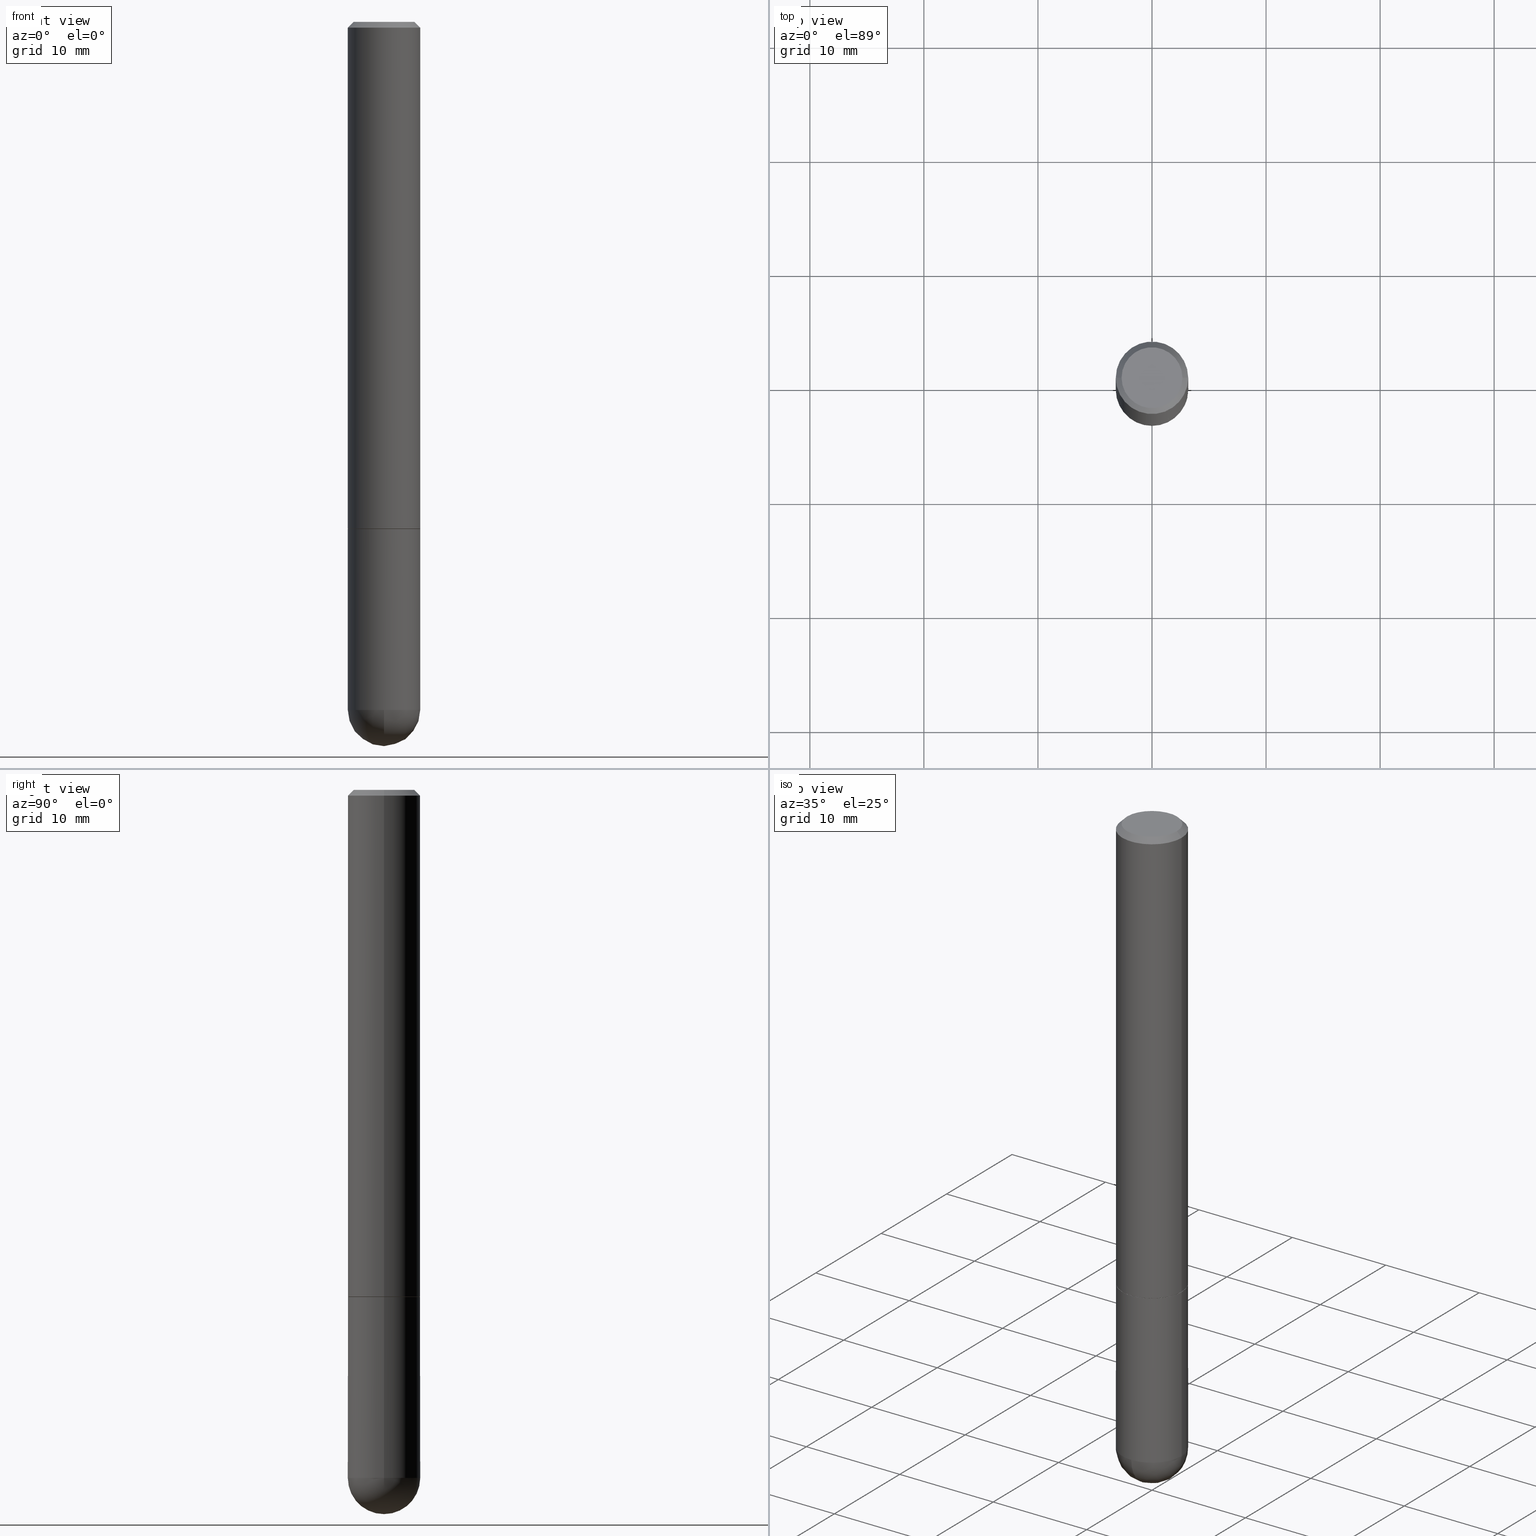
[diagram: canonical four-view strip — front | top / right | iso, engineering-drawing reading convention]
A machine part, canonical four-view strip (front | top / right | iso — engineering-drawing reading convention). The complete STEP part file that produces these views, byte-faithful:
ISO-10303-21;
HEADER;
FILE_DESCRIPTION (( 'STEP AP203' ),
    '1' );
FILE_NAME ('34917.STEP',
    '2024-02-21T18:22:01',
    ( '' ),
    ( '' ),
    'SwSTEP 2.0',
    'SolidWorks 2023',
    '' );
FILE_SCHEMA (( 'CONFIG_CONTROL_DESIGN' ));
ENDSEC;

DATA;
#1 = VERTEX_POINT ( 'NONE', #9 ) ;
#2 = CARTESIAN_POINT ( 'NONE',  ( 0.000000000000000000, 0.000000000000000000, 0.000000000000000000 ) ) ;
#3 = EDGE_CURVE ( 'NONE', #33, #204, #329, .T. ) ;
#4 = LINE ( 'NONE', #391, #344 ) ;
#5 = CONICAL_SURFACE ( 'NONE', #206, 0.1250000000000000278, 0.7853981633974473908 ) ;
#6 = EDGE_LOOP ( 'NONE', ( #60, #183 ) ) ;
#7 = ORIENTED_EDGE ( 'NONE', *, *, #126, .T. ) ;
#8 = ADVANCED_FACE ( 'NONE', ( #128 ), #335, .T. ) ;
#9 = CARTESIAN_POINT ( 'NONE',  ( 0.1250000000000000000, -6.982962677686288010E-15, -1.750000000000000222 ) ) ;
#10 = CONICAL_SURFACE ( 'NONE', #68, 0.1250000000000000278, 0.7853981633974473908 ) ;
#11 = DIRECTION ( 'NONE',  ( 1.000000000000000000, -6.982962677686264344E-15, 0.000000000000000000 ) ) ;
#12 = ORIENTED_EDGE ( 'NONE', *, *, #340, .F. ) ;
#13 = DIRECTION ( 'NONE',  ( -1.000000000000000000, 6.982962677686267499E-15, 0.000000000000000000 ) ) ;
#14 = PRODUCT ( '34917', '34917', '', ( #54 ) ) ;
#15 = DATE_AND_TIME ( #252, #307 ) ;
#16 = EDGE_CURVE ( 'NONE', #398, #249, #200, .T. ) ;
#17 = PERSON_AND_ORGANIZATION_ROLE ( 'creator' ) ;
#18 = DIRECTION ( 'NONE',  ( -2.445468806185136597E-29, 3.491481338843145583E-15, 1.000000000000000000 ) ) ;
#19 = LOCAL_TIME ( 13, 22, 1.000000000000000000, #289 ) ;
#20 = CARTESIAN_POINT ( 'NONE',  ( 4.890937612370292426E-31, -6.982962677686317493E-17, -0.02000000000000007674 ) ) ;
#21 = DIRECTION ( 'NONE',  ( -2.445468806185136597E-29, 3.491481338843145583E-15, 1.000000000000000000 ) ) ;
#22 = ADVANCED_FACE ( 'NONE', ( #217 ), #10, .T. ) ;
#23 = APPROVAL_ROLE ( '' ) ;
#24 = CC_DESIGN_APPROVAL ( #331, ( #411 ) ) ;
#25 = DIRECTION ( 'NONE',  ( 0.7071067811865469066, -7.319954787623254468E-15, -0.7071067811865482389 ) ) ;
#26 = EDGE_CURVE ( 'NONE', #394, #356, #148, .T. ) ;
#27 = PERSON_AND_ORGANIZATION_ROLE ( 'creator' ) ;
#28 = AXIS2_PLACEMENT_3D ( 'NONE', #43, #333, #122 ) ;
#29 = PERSON_AND_ORGANIZATION_ROLE ( 'design_supplier' ) ;
#30 = VECTOR ( 'NONE', #177, 39.37007874015748143 ) ;
#31 = ORIENTED_EDGE ( 'NONE', *, *, #3, .T. ) ;
#32 = EDGE_CURVE ( 'NONE', #211, #234, #395, .T. ) ;
#33 = VERTEX_POINT ( 'NONE', #102 ) ;
#34 = ORIENTED_EDGE ( 'NONE', *, *, #178, .F. ) ;
#35 = ORIENTED_EDGE ( 'NONE', *, *, #32, .F. ) ;
#36 = ADVANCED_FACE ( 'NONE', ( #71 ), #230, .F. ) ;
#37 = CALENDAR_DATE ( 2024, 21, 2 ) ;
#38 = DIRECTION ( 'NONE',  ( 1.000000000000000000, -6.982962677686267499E-15, 0.000000000000000000 ) ) ;
#39 = CIRCLE ( 'NONE', #271, 0.1250000000000000000 ) ;
#40 = CONICAL_SURFACE ( 'NONE', #323, 0.1239999999999999991, 0.7853981633975420928 ) ;
#41 = APPROVAL_ROLE ( '' ) ;
#42 = DIRECTION ( 'NONE',  ( 2.438088387897960049E-29, -3.491481338843145188E-15, -1.000000000000000000 ) ) ;
#43 = CARTESIAN_POINT ( 'NONE',  ( 0.000000000000000000, 0.000000000000000000, 0.000000000000000000 ) ) ;
#44 = AXIS2_PLACEMENT_3D ( 'NONE', #222, #375, #247 ) ;
#45 = VECTOR ( 'NONE', #404, 39.37007874015748143 ) ;
#46 = CARTESIAN_POINT ( 'NONE',  ( 0.000000000000000000, 0.000000000000000000, 0.000000000000000000 ) ) ;
#47 = DIRECTION ( 'NONE',  ( -2.445468806185136597E-29, 3.491481338843145583E-15, 1.000000000000000000 ) ) ;
#48 = DIRECTION ( 'NONE',  ( -2.445468806185136597E-29, 3.491481338843145583E-15, 1.000000000000000000 ) ) ;
#49 = CARTESIAN_POINT ( 'NONE',  ( 8.728703347108260359E-16, 0.1249999999999938799, -1.750000000000000666 ) ) ;
#50 = AXIS2_PLACEMENT_3D ( 'NONE', #46, #346, #53 ) ;
#51 = AXIS2_PLACEMENT_3D ( 'NONE', #52, #47, #308 ) ;
#52 = CARTESIAN_POINT ( 'NONE',  ( 5.807988414689700538E-29, -8.292268179752471696E-15, -2.375000000000000000 ) ) ;
#53 = DIRECTION ( 'NONE',  ( 1.000000000000000000, -6.982962677686266711E-15, 4.876176775795935793E-29 ) ) ;
#54 = MECHANICAL_CONTEXT ( 'NONE', #365, 'mechanical' ) ;
#55 = ORIENTED_EDGE ( 'NONE', *, *, #72, .T. ) ;
#56 = UNCERTAINTY_MEASURE_WITH_UNIT (LENGTH_MEASURE( 1.000000000000000082E-05 ), #213, 'distance_accuracy_value', 'NONE');
#57 = AXIS2_PLACEMENT_3D ( 'NONE', #406, #259, #66 ) ;
#58 = ORIENTED_EDGE ( 'NONE', *, *, #119, .T. ) ;
#59 = EDGE_LOOP ( 'NONE', ( #256, #269, #250, #284 ) ) ;
#60 = ORIENTED_EDGE ( 'NONE', *, *, #364, .T. ) ;
#61 = CARTESIAN_POINT ( 'NONE',  ( 4.890937612370292426E-31, -6.982962677686317493E-17, -0.02000000000000007674 ) ) ;
#62 = DATE_TIME_ROLE ( 'creation_date' ) ;
#63 = ORIENTED_EDGE ( 'NONE', *, *, #340, .T. ) ;
#64 = AXIS2_PLACEMENT_3D ( 'NONE', #357, #240, #82 ) ;
#65 = DIRECTION ( 'NONE',  ( 1.000000000000000000, -6.982962677686265922E-15, 4.876176775795935793E-29 ) ) ;
#66 = DIRECTION ( 'NONE',  ( 1.000000000000000000, -6.982962677686270655E-15, 0.000000000000000000 ) ) ;
#67 = DIRECTION ( 'NONE',  ( -2.445468806185136597E-29, 3.491481338843145583E-15, 1.000000000000000000 ) ) ;
#68 = AXIS2_PLACEMENT_3D ( 'NONE', #20, #371, #304 ) ;
#69 = PRODUCT_DEFINITION_FORMATION_WITH_SPECIFIED_SOURCE ( 'ANY', '', #14, .NOT_KNOWN. ) ;
#70 = PLANE ( 'NONE',  #381 ) ;
#71 = FACE_OUTER_BOUND ( 'NONE', #151, .T. ) ;
#72 = EDGE_CURVE ( 'NONE', #366, #234, #377, .T. ) ;
#73 = SHAPE_DEFINITION_REPRESENTATION ( #355, #83 ) ;
#74 = CIRCLE ( 'NONE', #57, 0.1239999999999999991 ) ;
#75 = DIRECTION ( 'NONE',  ( -2.445468806185136597E-29, 3.491481338843145583E-15, 1.000000000000000000 ) ) ;
#76 = CARTESIAN_POINT ( 'NONE',  ( -0.1239999999999999991, -5.223720896284758045E-15, -1.750000000000000222 ) ) ;
#77 = CARTESIAN_POINT ( 'NONE',  ( 0.1050000000000001765, -8.238720831321587491E-16, -1.835460370743122338E-16 ) ) ;
#78 = CARTESIAN_POINT ( 'NONE',  ( 5.476868636775814291E-29, -8.766450547892521992E-15, -2.375000000000000000 ) ) ;
#79 = ADVANCED_FACE ( 'NONE', ( #295 ), #220, .T. ) ;
#80 = CYLINDRICAL_SURFACE ( 'NONE', #64, 0.1250000000000001388 ) ;
#81 = CIRCLE ( 'NONE', #389, 0.1050000000000001765 ) ;
#82 = DIRECTION ( 'NONE',  ( 1.000000000000000000, -6.982962677686266711E-15, 4.876176775795935793E-29 ) ) ;
#83 = ADVANCED_BREP_SHAPE_REPRESENTATION ( '34917', ( #153, #301, #235 ), #330 ) ;
#84 = ORIENTED_EDGE ( 'NONE', *, *, #349, .T. ) ;
#85 = EDGE_CURVE ( 'NONE', #394, #146, #260, .T. ) ;
#86 = EDGE_LOOP ( 'NONE', ( #361, #288, #179, #34 ) ) ;
#87 = CLOSED_SHELL ( 'NONE', ( #8, #399, #185, #232, #143 ) ) ;
#88 = APPROVAL_PERSON_ORGANIZATION ( #293, #331, #41 ) ;
#89 = ORGANIZATION ( 'UNSPECIFIED', 'UNSPECIFIED', '' ) ;
#90 = EDGE_LOOP ( 'NONE', ( #362, #55, #35, #327 ) ) ;
#91 = ORIENTED_EDGE ( 'NONE', *, *, #215, .T. ) ;
#92 = PERSON_AND_ORGANIZATION ( #130, #89 ) ;
#93 = CC_DESIGN_PERSON_AND_ORGANIZATION_ASSIGNMENT ( #296, #17, ( #411 ) ) ;
#94 = VECTOR ( 'NONE', #278, 39.37007874015748143 ) ;
#95 = APPROVAL_DATE_TIME ( #255, #135 ) ;
#96 = DIRECTION ( 'NONE',  ( -2.445468806185136877E-29, 3.491481338843145188E-15, 1.000000000000000000 ) ) ;
#97 = DIRECTION ( 'NONE',  ( 1.000000000000000000, -6.982962677686265922E-15, 4.883557194083112340E-29 ) ) ;
#98 = DIRECTION ( 'NONE',  ( -2.438088387897960049E-29, 3.491481338843145188E-15, 1.000000000000000000 ) ) ;
#99 = FACE_OUTER_BOUND ( 'NONE', #175, .T. ) ;
#100 = CIRCLE ( 'NONE', #350, 0.1250000000000000000 ) ;
#101 = CC_DESIGN_APPROVAL ( #108, ( #201 ) ) ;
#102 = CARTESIAN_POINT ( 'NONE',  ( -0.1050000000000001765, 7.681258945454895748E-16, -1.835460370743229328E-16 ) ) ;
#103 = DIRECTION ( 'NONE',  ( -2.445468806185136597E-29, 3.491481338843145583E-15, 1.000000000000000000 ) ) ;
#104 = PERSON_AND_ORGANIZATION_ROLE ( 'design_owner' ) ;
#105 = LINE ( 'NONE', #238, #111 ) ;
#106 = ORIENTED_EDGE ( 'NONE', *, *, #246, .F. ) ;
#107 = AXIS2_PLACEMENT_3D ( 'NONE', #196, #21, #378 ) ;
#108 = APPROVAL ( #324, 'UNSPECIFIED' ) ;
#109 = ORIENTED_EDGE ( 'NONE', *, *, #354, .T. ) ;
#110 = FACE_OUTER_BOUND ( 'NONE', #118, .T. ) ;
#111 = VECTOR ( 'NONE', #386, 39.37007874015748143 ) ;
#112 = EDGE_LOOP ( 'NONE', ( #147, #328, #203, #210 ) ) ;
#113 = ADVANCED_FACE ( 'NONE', ( #372 ), #224, .T. ) ;
#114 = ORIENTED_EDGE ( 'NONE', *, *, #85, .F. ) ;
#115 = ORIENTED_EDGE ( 'NONE', *, *, #215, .F. ) ;
#116 = VERTEX_POINT ( 'NONE', #229 ) ;
#117 = DATE_AND_TIME ( #267, #345 ) ;
#118 = EDGE_LOOP ( 'NONE', ( #106, #58, #245, #218 ) ) ;
#119 = EDGE_CURVE ( 'NONE', #116, #356, #297, .T. ) ;
#120 = DIRECTION ( 'NONE',  ( -2.445468806185136597E-29, 3.491481338843145583E-15, 1.000000000000000000 ) ) ;
#121 = APPROVAL_ROLE ( '' ) ;
#122 = DIRECTION ( 'NONE',  ( 1.000000000000000000, -6.982962677686266711E-15, 4.876176775795935793E-29 ) ) ;
#123 = AXIS2_PLACEMENT_3D ( 'NONE', #290, #129, #376 ) ;
#124 = CIRCLE ( 'NONE', #258, 0.1239999999999999991 ) ;
#125 = ORIENTED_EDGE ( 'NONE', *, *, #198, .T. ) ;
#126 = EDGE_CURVE ( 'NONE', #393, #142, #39, .T. ) ;
#127 = CARTESIAN_POINT ( 'NONE',  ( 5.807988414689700538E-29, -8.292268179752471696E-15, -2.375000000000000000 ) ) ;
#128 = FACE_OUTER_BOUND ( 'NONE', #144, .T. ) ;
#129 = DIRECTION ( 'NONE',  ( -1.000000000000000000, 6.982962677686265922E-15, -4.883557194083112901E-29 ) ) ;
#130 = PERSON ( 'UNSPECIFIED', 'UNSPECIFIED', 'UNSPECIFIED', ('UNSPECIFIED'), ('UNSPECIFIED'), ('UNSPECIFIED') ) ;
#131 = DIRECTION ( 'NONE',  ( 1.000000000000000000, -6.982962677686270655E-15, 0.000000000000000000 ) ) ;
#132 = DIMENSIONAL_EXPONENTS ( 1.000000000000000000, 0.000000000000000000, 0.000000000000000000, 0.000000000000000000, 0.000000000000000000, 0.000000000000000000, 0.000000000000000000 ) ;
#133 = DIRECTION ( 'NONE',  ( -1.000000000000000000, 6.982962677686265922E-15, -4.876176775795935793E-29 ) ) ;
#134 = AXIS2_PLACEMENT_3D ( 'NONE', #299, #337, #166 ) ;
#135 = APPROVAL ( #154, 'UNSPECIFIED' ) ;
#136 = ORIENTED_EDGE ( 'NONE', *, *, #26, .T. ) ;
#137 = CARTESIAN_POINT ( 'NONE',  ( -0.1250000000000000000, -6.313001841663863345E-15, -1.750000000000000222 ) ) ;
#138 = AXIS2_PLACEMENT_3D ( 'NONE', #339, #305, #273 ) ;
#139 = APPROVAL_PERSON_ORGANIZATION ( #92, #135, #121 ) ;
#140 = CC_DESIGN_PERSON_AND_ORGANIZATION_ASSIGNMENT ( #266, #226, ( #201 ) ) ;
#141 = DIRECTION ( 'NONE',  ( 1.000000000000000000, -6.982962677686270655E-15, 0.000000000000000000 ) ) ;
#142 = VERTEX_POINT ( 'NONE', #387 ) ;
#143 = ADVANCED_FACE ( 'NONE', ( #348 ), #311, .T. ) ;
#144 = EDGE_LOOP ( 'NONE', ( #155, #281, #243, #12, #7 ) ) ;
#145 = DIRECTION ( 'NONE',  ( -1.000000000000000000, 6.982962677686265922E-15, -4.883557194083112901E-29 ) ) ;
#146 = VERTEX_POINT ( 'NONE', #137 ) ;
#147 = ORIENTED_EDGE ( 'NONE', *, *, #349, .F. ) ;
#148 = CIRCLE ( 'NONE', #257, 0.1250000000000000000 ) ;
#149 = VECTOR ( 'NONE', #25, 39.37007874015748143 ) ;
#150 = CC_DESIGN_PERSON_AND_ORGANIZATION_ASSIGNMENT ( #268, #104, ( #14 ) ) ;
#151 = EDGE_LOOP ( 'NONE', ( #374, #115 ) ) ;
#152 = DIRECTION ( 'NONE',  ( 1.000000000000000000, -6.982962677686266711E-15, 4.881622206245854183E-29 ) ) ;
#153 = MANIFOLD_SOLID_BREP ( 'Body-Move/Copy2[1]', #87 ) ;
#154 = APPROVAL_STATUS ( 'not_yet_approved' ) ;
#155 = ORIENTED_EDGE ( 'NONE', *, *, #209, .T. ) ;
#156 = DIRECTION ( 'NONE',  ( -2.445468806185136597E-29, 3.491481338843145583E-15, 1.000000000000000000 ) ) ;
#157 = CALENDAR_DATE ( 2024, 21, 2 ) ;
#158 = APPLICATION_PROTOCOL_DEFINITION ( 'international standard', 'config_control_design', 1994, #173 ) ;
#159 = DIRECTION ( 'NONE',  ( -2.445468806185136597E-29, 3.491481338843145583E-15, 1.000000000000000000 ) ) ;
#160 = CARTESIAN_POINT ( 'NONE',  ( 0.1239999999999999991, -6.975979715008602784E-15, -1.750000000000000222 ) ) ;
#161 = DATE_AND_TIME ( #157, #286 ) ;
#162 = ORIENTED_EDGE ( 'NONE', *, *, #283, .F. ) ;
#163 = CARTESIAN_POINT ( 'NONE',  ( 4.488561081641444621E-45, -6.408475632635922878E-31, -1.835460370743176819E-16 ) ) ;
#164 = AXIS2_PLACEMENT_3D ( 'NONE', #373, #97, #303 ) ;
#165 = COORDINATED_UNIVERSAL_TIME_OFFSET ( 5, 0, .BEHIND. ) ;
#166 = DIRECTION ( 'NONE',  ( 1.000000000000000000, -6.982962677686266711E-15, 4.876176775795935793E-29 ) ) ;
#167 = EDGE_CURVE ( 'NONE', #211, #398, #169, .T. ) ;
#168 = AXIS2_PLACEMENT_3D ( 'NONE', #265, #159, #407 ) ;
#169 = LINE ( 'NONE', #309, #94 ) ;
#170 = EDGE_CURVE ( 'NONE', #234, #249, #4, .T. ) ;
#171 = DIRECTION ( 'NONE',  ( -1.000000000000000000, 6.982962677686265922E-15, -4.876176775795935793E-29 ) ) ;
#172 = CARTESIAN_POINT ( 'NONE',  ( 4.279570410823989044E-29, -6.110092342975505460E-15, -1.750000000000000222 ) ) ;
#173 = APPLICATION_CONTEXT ( 'configuration controlled 3d designs of mechanical parts and assemblies' ) ;
#174 = EDGE_LOOP ( 'NONE', ( #325, #91, #109, #239 ) ) ;
#175 = EDGE_LOOP ( 'NONE', ( #31, #84 ) ) ;
#176 = ORIENTED_EDGE ( 'NONE', *, *, #178, .T. ) ;
#177 = DIRECTION ( 'NONE',  ( -2.445468806185136877E-29, 3.491481338843145188E-15, 1.000000000000000000 ) ) ;
#178 = EDGE_CURVE ( 'NONE', #356, #393, #100, .T. ) ;
#179 = ORIENTED_EDGE ( 'NONE', *, *, #126, .F. ) ;
#180 = DIRECTION ( 'NONE',  ( 2.445468806185136597E-29, -3.491481338843145583E-15, -1.000000000000000000 ) ) ;
#181 = APPROVAL_DATE_TIME ( #161, #331 ) ;
#182 = AXIS2_PLACEMENT_3D ( 'NONE', #320, #326, #384 ) ;
#183 = ORIENTED_EDGE ( 'NONE', *, *, #277, .T. ) ;
#184 = CARTESIAN_POINT ( 'NONE',  ( 4.279570410823989044E-29, -6.110092342975505460E-15, -1.750000000000000222 ) ) ;
#185 = ADVANCED_FACE ( 'NONE', ( #274 ), #392, .T. ) ;
#186 =( NAMED_UNIT ( * ) SI_UNIT ( $, .STERADIAN. ) SOLID_ANGLE_UNIT ( ) );
#187 = DATE_TIME_ROLE ( 'classification_date' ) ;
#188 = CARTESIAN_POINT ( 'NONE',  ( -0.1250000000000000000, 8.881784197001252323E-16, -6.148668862818632227E-30 ) ) ;
#189 = VERTEX_POINT ( 'NONE', #385 ) ;
#190 = CC_DESIGN_SECURITY_CLASSIFICATION ( #201, ( #69 ) ) ;
#191 = CARTESIAN_POINT ( 'NONE',  ( 4.279570410823989044E-29, -6.110092342975505460E-15, -1.750000000000000222 ) ) ;
#192 = CARTESIAN_POINT ( 'NONE',  ( 7.332110811570591090E-16, 0.1050000000000001765, -4.583785591156897143E-16 ) ) ;
#193 = ORIENTED_EDGE ( 'NONE', *, *, #277, .F. ) ;
#194 = ADVANCED_FACE ( 'NONE', ( #99 ), #70, .F. ) ;
#195 = DIRECTION ( 'NONE',  ( -0.7071067811866138531, 7.493145998870593974E-15, 0.7071067811864811814 ) ) ;
#196 = CARTESIAN_POINT ( 'NONE',  ( 4.279570410823989044E-29, -6.110092342975505460E-15, -1.750000000000000222 ) ) ;
#197 = AXIS2_PLACEMENT_3D ( 'NONE', #334, #264, #342 ) ;
#198 = EDGE_CURVE ( 'NONE', #33, #249, #105, .T. ) ;
#199 = CARTESIAN_POINT ( 'NONE',  ( 5.807988414689700538E-29, -8.292268179752471696E-15, -2.375000000000000000 ) ) ;
#200 = CIRCLE ( 'NONE', #368, 0.1250000000000000278 ) ;
#201 = SECURITY_CLASSIFICATION ( '', '', #275 ) ;
#202 = CC_DESIGN_DATE_AND_TIME_ASSIGNMENT ( #15, #62, ( #411 ) ) ;
#203 = ORIENTED_EDGE ( 'NONE', *, *, #16, .T. ) ;
#204 = VERTEX_POINT ( 'NONE', #77 ) ;
#205 = AXIS2_PLACEMENT_3D ( 'NONE', #184, #98, #65 ) ;
#206 = AXIS2_PLACEMENT_3D ( 'NONE', #61, #180, #13 ) ;
#207 = CC_DESIGN_PERSON_AND_ORGANIZATION_ASSIGNMENT ( #314, #29, ( #69 ) ) ;
#208 = ORIENTED_EDGE ( 'NONE', *, *, #228, .F. ) ;
#209 = EDGE_CURVE ( 'NONE', #142, #394, #248, .T. ) ;
#210 = ORIENTED_EDGE ( 'NONE', *, *, #198, .F. ) ;
#211 = VERTEX_POINT ( 'NONE', #233 ) ;
#212 = CALENDAR_DATE ( 2024, 21, 2 ) ;
#213 =( CONVERSION_BASED_UNIT ( 'INCH', #282 ) LENGTH_UNIT ( ) NAMED_UNIT ( #132 ) );
#214 = VECTOR ( 'NONE', #96, 39.37007874015748143 ) ;
#215 = EDGE_CURVE ( 'NONE', #366, #189, #124, .T. ) ;
#216 = AXIS2_PLACEMENT_3D ( 'NONE', #78, #145, #253 ) ;
#217 = FACE_OUTER_BOUND ( 'NONE', #112, .T. ) ;
#218 = ORIENTED_EDGE ( 'NONE', *, *, #209, .F. ) ;
#219 =( NAMED_UNIT ( * ) PLANE_ANGLE_UNIT ( ) SI_UNIT ( $, .RADIAN. ) );
#220 = CYLINDRICAL_SURFACE ( 'NONE', #28, 0.1250000000000001388 ) ;
#221 = ORIENTED_EDGE ( 'NONE', *, *, #170, .F. ) ;
#222 = CARTESIAN_POINT ( 'NONE',  ( 4.279570410823989044E-29, -6.110092342975505460E-15, -1.750000000000000222 ) ) ;
#223 = EDGE_LOOP ( 'NONE', ( #208, #343, #125, #321 ) ) ;
#224 = CONICAL_SURFACE ( 'NONE', #44, 0.1239999999999999991, 0.7853981633975420928 ) ;
#225 = PRODUCT_RELATED_PRODUCT_CATEGORY ( 'detail', '', ( #14 ) ) ;
#226 = PERSON_AND_ORGANIZATION_ROLE ( 'classification_officer' ) ;
#227 = CARTESIAN_POINT ( 'NONE',  ( 0.1250000000000000000, -8.728703347107833388E-16, 6.095220969744919741E-30 ) ) ;
#228 = EDGE_CURVE ( 'NONE', #204, #398, #382, .T. ) ;
#229 = CARTESIAN_POINT ( 'NONE',  ( 5.787897026856327965E-29, -9.195231672753244292E-15, -2.500000000000000444 ) ) ;
#230 = PLANE ( 'NONE',  #205 ) ;
#231 = FACE_OUTER_BOUND ( 'NONE', #6, .T. ) ;
#232 = ADVANCED_FACE ( 'NONE', ( #231 ), #310, .F. ) ;
#233 = CARTESIAN_POINT ( 'NONE',  ( 0.1250000000000002498, -6.979471196347446580E-15, -1.749000000000000110 ) ) ;
#234 = VERTEX_POINT ( 'NONE', #287 ) ;
#235 = AXIS2_PLACEMENT_3D ( 'NONE', #2, #279, #390 ) ;
#236 = CARTESIAN_POINT ( 'NONE',  ( 5.807988414689700538E-29, -8.292268179752471696E-15, -2.375000000000000000 ) ) ;
#237 = DIRECTION ( 'NONE',  ( -2.445468806185136877E-29, 3.491481338843145188E-15, 1.000000000000000000 ) ) ;
#238 = CARTESIAN_POINT ( 'NONE',  ( -0.1250000000000000278, 8.030407079339204351E-16, -0.02000000000000007674 ) ) ;
#239 = ORIENTED_EDGE ( 'NONE', *, *, #302, .F. ) ;
#240 = DIRECTION ( 'NONE',  ( -2.445468806185136597E-29, 3.491481338843145583E-15, 1.000000000000000000 ) ) ;
#241 = CLOSED_SHELL ( 'NONE', ( #113, #79, #22, #316, #383, #412, #36, #194 ) ) ;
#242 = EDGE_CURVE ( 'NONE', #189, #366, #74, .T. ) ;
#243 = ORIENTED_EDGE ( 'NONE', *, *, #364, .F. ) ;
#244 = FACE_OUTER_BOUND ( 'NONE', #276, .T. ) ;
#245 = ORIENTED_EDGE ( 'NONE', *, *, #26, .F. ) ;
#246 = EDGE_CURVE ( 'NONE', #116, #142, #298, .T. ) ;
#247 = DIRECTION ( 'NONE',  ( 1.000000000000000000, -6.982962677686270655E-15, 0.000000000000000000 ) ) ;
#248 = CIRCLE ( 'NONE', #51, 0.1250000000000000000 ) ;
#249 = VERTEX_POINT ( 'NONE', #300 ) ;
#250 = ORIENTED_EDGE ( 'NONE', *, *, #16, .F. ) ;
#251 = DATE_AND_TIME ( #37, #336 ) ;
#252 = CALENDAR_DATE ( 2024, 21, 2 ) ;
#253 = DIRECTION ( 'NONE',  ( 6.982962677686265922E-15, 1.000000000000000000, -4.370956789862814839E-15 ) ) ;
#254 = DIRECTION ( 'NONE',  ( -2.445468806185136597E-29, 3.491481338843145583E-15, 1.000000000000000000 ) ) ;
#255 = DATE_AND_TIME ( #212, #19 ) ;
#256 = ORIENTED_EDGE ( 'NONE', *, *, #32, .T. ) ;
#257 = AXIS2_PLACEMENT_3D ( 'NONE', #127, #263, #131 ) ;
#258 = AXIS2_PLACEMENT_3D ( 'NONE', #172, #103, #317 ) ;
#259 = DIRECTION ( 'NONE',  ( -2.445468806185136597E-29, 3.491481338843145583E-15, 1.000000000000000000 ) ) ;
#260 = LINE ( 'NONE', #188, #214 ) ;
#261 = CARTESIAN_POINT ( 'NONE',  ( 4.277124942017804562E-29, -6.106600861636661664E-15, -1.749000000000000110 ) ) ;
#262 = CC_DESIGN_PERSON_AND_ORGANIZATION_ASSIGNMENT ( #380, #27, ( #69 ) ) ;
#263 = DIRECTION ( 'NONE',  ( -2.445468806185136597E-29, 3.491481338843145583E-15, 1.000000000000000000 ) ) ;
#264 = DIRECTION ( 'NONE',  ( -2.445468806185136597E-29, 3.491481338843145583E-15, 1.000000000000000000 ) ) ;
#265 = CARTESIAN_POINT ( 'NONE',  ( 4.277124942017804562E-29, -6.106600861636661664E-15, -1.749000000000000110 ) ) ;
#266 = PERSON_AND_ORGANIZATION ( #130, #89 ) ;
#267 = CALENDAR_DATE ( 2024, 21, 2 ) ;
#268 = PERSON_AND_ORGANIZATION ( #130, #89 ) ;
#269 = ORIENTED_EDGE ( 'NONE', *, *, #170, .T. ) ;
#270 = VECTOR ( 'NONE', #195, 39.37007874015748143 ) ;
#271 = AXIS2_PLACEMENT_3D ( 'NONE', #199, #75, #351 ) ;
#272 = CIRCLE ( 'NONE', #107, 0.1250000000000000000 ) ;
#273 = DIRECTION ( 'NONE',  ( -7.105427357601000281E-15, -1.000000000000000000, 0.000000000000000000 ) ) ;
#274 = FACE_OUTER_BOUND ( 'NONE', #86, .T. ) ;
#275 = SECURITY_CLASSIFICATION_LEVEL ( 'unclassified' ) ;
#276 = EDGE_LOOP ( 'NONE', ( #221, #285, #358, #162 ) ) ;
#277 = EDGE_CURVE ( 'NONE', #146, #1, #272, .T. ) ;
#278 = DIRECTION ( 'NONE',  ( -2.445468806185136877E-29, 3.491481338843145188E-15, 1.000000000000000000 ) ) ;
#279 = DIRECTION ( 'NONE',  ( 0.000000000000000000, 0.000000000000000000, 1.000000000000000000 ) ) ;
#280 = APPROVAL_PERSON_ORGANIZATION ( #388, #108, #23 ) ;
#281 = ORIENTED_EDGE ( 'NONE', *, *, #85, .T. ) ;
#282 = LENGTH_MEASURE_WITH_UNIT ( LENGTH_MEASURE( 0.02539999999999999897 ), #294 );
#283 = EDGE_CURVE ( 'NONE', #249, #398, #403, .T. ) ;
#284 = ORIENTED_EDGE ( 'NONE', *, *, #167, .F. ) ;
#285 = ORIENTED_EDGE ( 'NONE', *, *, #302, .T. ) ;
#286 = LOCAL_TIME ( 13, 22, 1.000000000000000000, #165 ) ;
#287 = CARTESIAN_POINT ( 'NONE',  ( -0.1250000000000002498, -2.200036824506632516E-15, -1.749000000000000110 ) ) ;
#288 = ORIENTED_EDGE ( 'NONE', *, *, #246, .T. ) ;
#289 = COORDINATED_UNIVERSAL_TIME_OFFSET ( 5, 0, .BEHIND. ) ;
#290 = CARTESIAN_POINT ( 'NONE',  ( 5.476868636775814291E-29, -8.766450547892521992E-15, -2.375000000000000000 ) ) ;
#291 = COORDINATED_UNIVERSAL_TIME_OFFSET ( 5, 0, .BEHIND. ) ;
#292 = COORDINATED_UNIVERSAL_TIME_OFFSET ( 5, 0, .BEHIND. ) ;
#293 = PERSON_AND_ORGANIZATION ( #130, #89 ) ;
#294 =( LENGTH_UNIT ( ) NAMED_UNIT ( * ) SI_UNIT ( $, .METRE. ) );
#295 = FACE_OUTER_BOUND ( 'NONE', #59, .T. ) ;
#296 = PERSON_AND_ORGANIZATION ( #130, #89 ) ;
#297 = CIRCLE ( 'NONE', #138, 0.1250000000000001943 ) ;
#298 = CIRCLE ( 'NONE', #164, 0.1250000000000001943 ) ;
#299 = CARTESIAN_POINT ( 'NONE',  ( 0.000000000000000000, 0.000000000000000000, 0.000000000000000000 ) ) ;
#300 = CARTESIAN_POINT ( 'NONE',  ( -0.1250000000000000278, 8.030407079339204351E-16, -0.02000000000000007674 ) ) ;
#301 = MANIFOLD_SOLID_BREP ( 'Body-Move/Copy2[2]', #241 ) ;
#302 = EDGE_CURVE ( 'NONE', #234, #211, #359, .T. ) ;
#303 = DIRECTION ( 'NONE',  ( 6.982962677686265133E-15, 1.000000000000000000, 0.000000000000000000 ) ) ;
#304 = DIRECTION ( 'NONE',  ( -1.000000000000000000, 6.982962677686267499E-15, 0.000000000000000000 ) ) ;
#305 = DIRECTION ( 'NONE',  ( -1.000000000000000000, 7.105427357601001070E-15, -4.926315508542082329E-29 ) ) ;
#306 = AXIS2_PLACEMENT_3D ( 'NONE', #163, #120, #400 ) ;
#307 = LOCAL_TIME ( 13, 22, 1.000000000000000000, #292 ) ;
#308 = DIRECTION ( 'NONE',  ( 1.000000000000000000, -6.982962677686270655E-15, 0.000000000000000000 ) ) ;
#309 = CARTESIAN_POINT ( 'NONE',  ( 0.1250000000000001388, -8.728703347107843249E-16, 6.095220969744926748E-30 ) ) ;
#310 = PLANE ( 'NONE',  #369 ) ;
#311 = CYLINDRICAL_SURFACE ( 'NONE', #50, 0.1250000000000000000 ) ;
#312 = AXIS2_PLACEMENT_3D ( 'NONE', #261, #156, #11 ) ;
#313 = CARTESIAN_POINT ( 'NONE',  ( 0.1250000000000000278, -9.273918764983049407E-16, -0.02000000000000007674 ) ) ;
#314 = PERSON_AND_ORGANIZATION ( #130, #89 ) ;
#315 = SPHERICAL_SURFACE ( 'NONE', #216, 0.1250000000000001943 ) ;
#316 = ADVANCED_FACE ( 'NONE', ( #363 ), #5, .T. ) ;
#317 = DIRECTION ( 'NONE',  ( 1.000000000000000000, -6.982962677686270655E-15, 0.000000000000000000 ) ) ;
#318 = CARTESIAN_POINT ( 'NONE',  ( -0.1250000000000000000, -6.313001841663864134E-15, -2.375000000000000000 ) ) ;
#319 = DIRECTION ( 'NONE',  ( 1.000000000000000000, -6.982962677686270655E-15, 0.000000000000000000 ) ) ;
#320 = CARTESIAN_POINT ( 'NONE',  ( 4.279570410823989044E-29, -6.110092342975505460E-15, -1.750000000000000222 ) ) ;
#321 = ORIENTED_EDGE ( 'NONE', *, *, #283, .T. ) ;
#322 = DESIGN_CONTEXT ( 'detailed design', #173, 'design' ) ;
#323 = AXIS2_PLACEMENT_3D ( 'NONE', #191, #18, #319 ) ;
#324 = APPROVAL_STATUS ( 'not_yet_approved' ) ;
#325 = ORIENTED_EDGE ( 'NONE', *, *, #72, .F. ) ;
#326 = DIRECTION ( 'NONE',  ( -2.445468806185136597E-29, 3.491481338843145583E-15, 1.000000000000000000 ) ) ;
#327 = ORIENTED_EDGE ( 'NONE', *, *, #354, .F. ) ;
#328 = ORIENTED_EDGE ( 'NONE', *, *, #228, .T. ) ;
#329 = CIRCLE ( 'NONE', #306, 0.1050000000000001765 ) ;
#330 =( GEOMETRIC_REPRESENTATION_CONTEXT ( 3 ) GLOBAL_UNCERTAINTY_ASSIGNED_CONTEXT ( ( #56 ) ) GLOBAL_UNIT_ASSIGNED_CONTEXT ( ( #213, #219, #186 ) ) REPRESENTATION_CONTEXT ( 'NONE', 'WORKASPACE' ) );
#331 = APPROVAL ( #338, 'UNSPECIFIED' ) ;
#332 = EDGE_LOOP ( 'NONE', ( #114, #136, #176, #63, #193 ) ) ;
#333 = DIRECTION ( 'NONE',  ( -2.445468806185136597E-29, 3.491481338843145583E-15, 1.000000000000000000 ) ) ;
#334 = CARTESIAN_POINT ( 'NONE',  ( 4.890937612370292426E-31, -6.982962677686317493E-17, -0.02000000000000007674 ) ) ;
#335 = CYLINDRICAL_SURFACE ( 'NONE', #134, 0.1250000000000000000 ) ;
#336 = LOCAL_TIME ( 13, 22, 1.000000000000000000, #291 ) ;
#337 = DIRECTION ( 'NONE',  ( -2.445468806185136597E-29, 3.491481338843145583E-15, 1.000000000000000000 ) ) ;
#338 = APPROVAL_STATUS ( 'not_yet_approved' ) ;
#339 = CARTESIAN_POINT ( 'NONE',  ( 5.476868636775814291E-29, -8.766450547892521992E-15, -2.375000000000000000 ) ) ;
#340 = EDGE_CURVE ( 'NONE', #393, #1, #401, .T. ) ;
#341 = CARTESIAN_POINT ( 'NONE',  ( -0.1239999999999999991, -5.229019350632981236E-15, -1.750000000000000222 ) ) ;
#342 = DIRECTION ( 'NONE',  ( 1.000000000000000000, -6.982962677686267499E-15, 0.000000000000000000 ) ) ;
#343 = ORIENTED_EDGE ( 'NONE', *, *, #3, .F. ) ;
#344 = VECTOR ( 'NONE', #237, 39.37007874015748143 ) ;
#345 = LOCAL_TIME ( 13, 22, 1.000000000000000000, #405 ) ;
#346 = DIRECTION ( 'NONE',  ( -2.445468806185136597E-29, 3.491481338843145583E-15, 1.000000000000000000 ) ) ;
#347 = CARTESIAN_POINT ( 'NONE',  ( 0.1250000000000000278, -9.273918764983049407E-16, -0.02000000000000007674 ) ) ;
#348 = FACE_OUTER_BOUND ( 'NONE', #332, .T. ) ;
#349 = EDGE_CURVE ( 'NONE', #204, #33, #81, .T. ) ;
#350 = AXIS2_PLACEMENT_3D ( 'NONE', #236, #48, #141 ) ;
#351 = DIRECTION ( 'NONE',  ( 1.000000000000000000, -6.982962677686270655E-15, 0.000000000000000000 ) ) ;
#352 = APPLICATION_PROTOCOL_DEFINITION ( 'international standard', 'config_control_design', 1994, #365 ) ;
#353 = CARTESIAN_POINT ( 'NONE',  ( 0.1250000000000000000, -8.074050596074771916E-15, -2.375000000000000000 ) ) ;
#354 = EDGE_CURVE ( 'NONE', #189, #211, #402, .T. ) ;
#355 = PRODUCT_DEFINITION_SHAPE ( 'NONE', 'NONE',  #411 ) ;
#356 = VERTEX_POINT ( 'NONE', #360 ) ;
#357 = CARTESIAN_POINT ( 'NONE',  ( 0.000000000000000000, 0.000000000000000000, 0.000000000000000000 ) ) ;
#358 = ORIENTED_EDGE ( 'NONE', *, *, #167, .T. ) ;
#359 = CIRCLE ( 'NONE', #312, 0.1250000000000002498 ) ;
#360 = CARTESIAN_POINT ( 'NONE',  ( -8.881784197000694204E-16, -0.1250000000000086320, -2.374999999999999556 ) ) ;
#361 = ORIENTED_EDGE ( 'NONE', *, *, #119, .F. ) ;
#362 = ORIENTED_EDGE ( 'NONE', *, *, #242, .T. ) ;
#363 = FACE_OUTER_BOUND ( 'NONE', #223, .T. ) ;
#364 = EDGE_CURVE ( 'NONE', #1, #146, #396, .T. ) ;
#365 = APPLICATION_CONTEXT ( 'configuration controlled 3d designs of mechanical parts and assemblies' ) ;
#366 = VERTEX_POINT ( 'NONE', #76 ) ;
#367 = CARTESIAN_POINT ( 'NONE',  ( 4.488561081641444621E-45, -6.408475632635922878E-31, -1.835460370743176819E-16 ) ) ;
#368 = AXIS2_PLACEMENT_3D ( 'NONE', #409, #67, #38 ) ;
#369 = AXIS2_PLACEMENT_3D ( 'NONE', #49, #379, #171 ) ;
#370 = FACE_OUTER_BOUND ( 'NONE', #174, .T. ) ;
#371 = DIRECTION ( 'NONE',  ( 2.445468806185136597E-29, -3.491481338843145583E-15, -1.000000000000000000 ) ) ;
#372 = FACE_OUTER_BOUND ( 'NONE', #90, .T. ) ;
#373 = CARTESIAN_POINT ( 'NONE',  ( 5.476868636775814291E-29, -8.766450547892521992E-15, -2.375000000000000000 ) ) ;
#374 = ORIENTED_EDGE ( 'NONE', *, *, #242, .F. ) ;
#375 = DIRECTION ( 'NONE',  ( -2.445468806185136597E-29, 3.491481338843145583E-15, 1.000000000000000000 ) ) ;
#376 = DIRECTION ( 'NONE',  ( 6.982962677686265922E-15, 1.000000000000000000, -4.370956789862814839E-15 ) ) ;
#377 = LINE ( 'NONE', #341, #270 ) ;
#378 = DIRECTION ( 'NONE',  ( 1.000000000000000000, -6.982962677686262766E-15, 0.000000000000000000 ) ) ;
#379 = DIRECTION ( 'NONE',  ( 2.438088387897960049E-29, -3.491481338843145188E-15, -1.000000000000000000 ) ) ;
#380 = PERSON_AND_ORGANIZATION ( #130, #89 ) ;
#381 = AXIS2_PLACEMENT_3D ( 'NONE', #192, #42, #133 ) ;
#382 = LINE ( 'NONE', #347, #149 ) ;
#383 = ADVANCED_FACE ( 'NONE', ( #244 ), #80, .T. ) ;
#384 = DIRECTION ( 'NONE',  ( 1.000000000000000000, -6.982962677686262766E-15, 0.000000000000000000 ) ) ;
#385 = CARTESIAN_POINT ( 'NONE',  ( 0.1239999999999999991, -6.975979715008602784E-15, -1.750000000000000222 ) ) ;
#386 = DIRECTION ( 'NONE',  ( -0.7071067811865469066, 2.468850131082249961E-15, -0.7071067811865482389 ) ) ;
#387 = CARTESIAN_POINT ( 'NONE',  ( 8.728703347108403340E-16, 0.1249999999999915623, -2.375000000000000888 ) ) ;
#388 = PERSON_AND_ORGANIZATION ( #130, #89 ) ;
#389 = AXIS2_PLACEMENT_3D ( 'NONE', #367, #254, #152 ) ;
#390 = DIRECTION ( 'NONE',  ( 1.000000000000000000, 0.000000000000000000, 0.000000000000000000 ) ) ;
#391 = CARTESIAN_POINT ( 'NONE',  ( -0.1250000000000001388, 8.881784197001262184E-16, -6.148668862818638533E-30 ) ) ;
#392 = SPHERICAL_SURFACE ( 'NONE', #123, 0.1250000000000001943 ) ;
#393 = VERTEX_POINT ( 'NONE', #353 ) ;
#394 = VERTEX_POINT ( 'NONE', #318 ) ;
#395 = CIRCLE ( 'NONE', #168, 0.1250000000000002498 ) ;
#396 = CIRCLE ( 'NONE', #182, 0.1250000000000000000 ) ;
#397 = APPROVAL_DATE_TIME ( #117, #108 ) ;
#398 = VERTEX_POINT ( 'NONE', #313 ) ;
#399 = ADVANCED_FACE ( 'NONE', ( #110 ), #315, .T. ) ;
#400 = DIRECTION ( 'NONE',  ( 1.000000000000000000, -6.982962677686266711E-15, 4.881622206245854183E-29 ) ) ;
#401 = LINE ( 'NONE', #227, #30 ) ;
#402 = LINE ( 'NONE', #160, #45 ) ;
#403 = CIRCLE ( 'NONE', #197, 0.1250000000000000278 ) ;
#404 = DIRECTION ( 'NONE',  ( 0.7071067811866138531, -2.468850131082952047E-15, 0.7071067811864811814 ) ) ;
#405 = COORDINATED_UNIVERSAL_TIME_OFFSET ( 5, 0, .BEHIND. ) ;
#406 = CARTESIAN_POINT ( 'NONE',  ( 4.279570410823989044E-29, -6.110092342975505460E-15, -1.750000000000000222 ) ) ;
#407 = DIRECTION ( 'NONE',  ( 1.000000000000000000, -6.982962677686264344E-15, 0.000000000000000000 ) ) ;
#408 = CC_DESIGN_APPROVAL ( #135, ( #69 ) ) ;
#409 = CARTESIAN_POINT ( 'NONE',  ( 4.890937612370292426E-31, -6.982962677686317493E-17, -0.02000000000000007674 ) ) ;
#410 = CC_DESIGN_DATE_AND_TIME_ASSIGNMENT ( #251, #187, ( #201 ) ) ;
#411 = PRODUCT_DEFINITION ( 'UNKNOWN', '', #69, #322 ) ;
#412 = ADVANCED_FACE ( 'NONE', ( #370 ), #40, .T. ) ;
ENDSEC;
END-ISO-10303-21;
